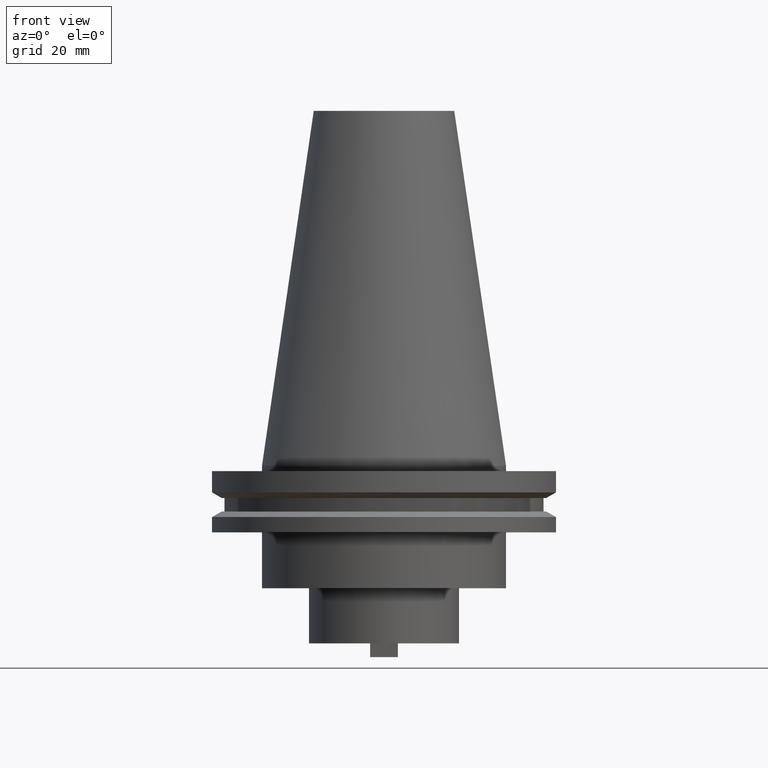
[diagram: clean part render]
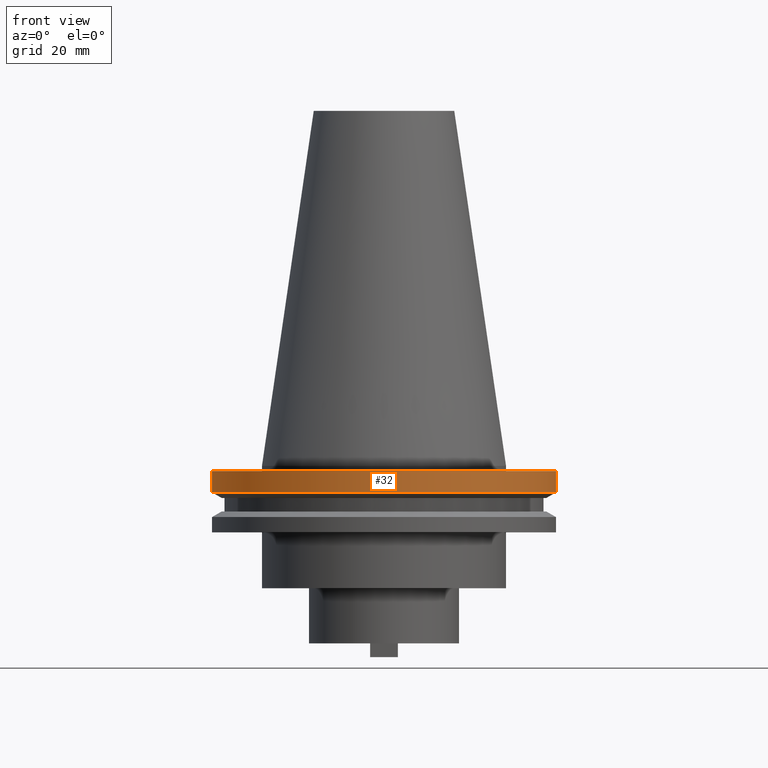
[diagram: same view with one face highlighted and labeled with its STEP entity id]
A machine part, front view. The second image highlights one B-rep face of the part: STEP entity #32.
In plain terms, the highlighted cylindrical surface (partial cylindrical patch) has radius 49.215 mm, axis along (-0, -0, 1).
Its self-contained STEP definition (entity closure, byte-faithful):
#32 = ADVANCED_FACE ( 'NONE', ( #40 ), #638, .T. ) ;
#38 = DIRECTION ( 'NONE',  ( 1.000000000000000000, 0.000000000000000000, 0.000000000000000000 ) ) ;
#40 = FACE_OUTER_BOUND ( 'NONE', #770, .T. ) ;
#48 = CARTESIAN_POINT ( 'NONE',  ( 49.21499999999999631, 0.000000000000000000, -1.499999999999987566 ) ) ;
#51 = DIRECTION ( 'NONE',  ( 1.000000000000000000, 0.000000000000000000, 0.000000000000000000 ) ) ;
#156 = LINE ( 'NONE', #590, #1015 ) ;
#180 = ORIENTED_EDGE ( 'NONE', *, *, #719, .T. ) ;
#182 = DIRECTION ( 'NONE',  ( -0.000000000000000000, -0.000000000000000000, 1.000000000000000000 ) ) ;
#185 = EDGE_CURVE ( 'NONE', #795, #831, #156, .T. ) ;
#201 = AXIS2_PLACEMENT_3D ( 'NONE', #540, #615, #38 ) ;
#241 = ORIENTED_EDGE ( 'NONE', *, *, #858, .T. ) ;
#245 = DIRECTION ( 'NONE',  ( -0.000000000000000000, -0.000000000000000000, 1.000000000000000000 ) ) ;
#256 = CIRCLE ( 'NONE', #878, 49.21500000000000341 ) ;
#361 = CARTESIAN_POINT ( 'NONE',  ( 49.21500000000000341, 0.000000000000000000, -7.602389855251287187 ) ) ;
#413 = DIRECTION ( 'NONE',  ( 1.000000000000000000, 0.000000000000000000, 0.000000000000000000 ) ) ;
#429 = CARTESIAN_POINT ( 'NONE',  ( 0.000000000000000000, 0.000000000000000000, -7.602389855251287187 ) ) ;
#451 = LINE ( 'NONE', #797, #933 ) ;
#482 = CIRCLE ( 'NONE', #201, 49.21499999999999631 ) ;
#540 = CARTESIAN_POINT ( 'NONE',  ( 0.000000000000000000, 0.000000000000000000, -1.499999999999987566 ) ) ;
#561 = CARTESIAN_POINT ( 'NONE',  ( 0.000000000000000000, 0.000000000000000000, 101.5999999999999943 ) ) ;
#567 = DIRECTION ( 'NONE',  ( -0.000000000000000000, -0.000000000000000000, 1.000000000000000000 ) ) ;
#590 = CARTESIAN_POINT ( 'NONE',  ( -49.21499999999999631, 6.027099222003697826E-15, 101.5999999999999943 ) ) ;
#615 = DIRECTION ( 'NONE',  ( -0.000000000000000000, -0.000000000000000000, 1.000000000000000000 ) ) ;
#638 = CYLINDRICAL_SURFACE ( 'NONE', #1000, 49.21499999999999631 ) ;
#719 = EDGE_CURVE ( 'NONE', #795, #777, #256, .T. ) ;
#737 = ORIENTED_EDGE ( 'NONE', *, *, #185, .F. ) ;
#749 = EDGE_CURVE ( 'NONE', #831, #978, #482, .T. ) ;
#770 = EDGE_LOOP ( 'NONE', ( #737, #180, #241, #930 ) ) ;
#777 = VERTEX_POINT ( 'NONE', #361 ) ;
#795 = VERTEX_POINT ( 'NONE', #969 ) ;
#797 = CARTESIAN_POINT ( 'NONE',  ( 49.21499999999999631, 0.000000000000000000, 101.5999999999999943 ) ) ;
#831 = VERTEX_POINT ( 'NONE', #886 ) ;
#858 = EDGE_CURVE ( 'NONE', #777, #978, #451, .T. ) ;
#878 = AXIS2_PLACEMENT_3D ( 'NONE', #429, #182, #413 ) ;
#886 = CARTESIAN_POINT ( 'NONE',  ( -49.21499999999999631, 6.027099222003697826E-15, -1.499999999999987566 ) ) ;
#930 = ORIENTED_EDGE ( 'NONE', *, *, #749, .F. ) ;
#933 = VECTOR ( 'NONE', #567, 1000.000000000000000 ) ;
#969 = CARTESIAN_POINT ( 'NONE',  ( -49.21500000000000341, 6.027099222003699404E-15, -7.602389855251287187 ) ) ;
#978 = VERTEX_POINT ( 'NONE', #48 ) ;
#1000 = AXIS2_PLACEMENT_3D ( 'NONE', #561, #1068, #51 ) ;
#1015 = VECTOR ( 'NONE', #245, 1000.000000000000000 ) ;
#1068 = DIRECTION ( 'NONE',  ( -0.000000000000000000, -0.000000000000000000, 1.000000000000000000 ) ) ;